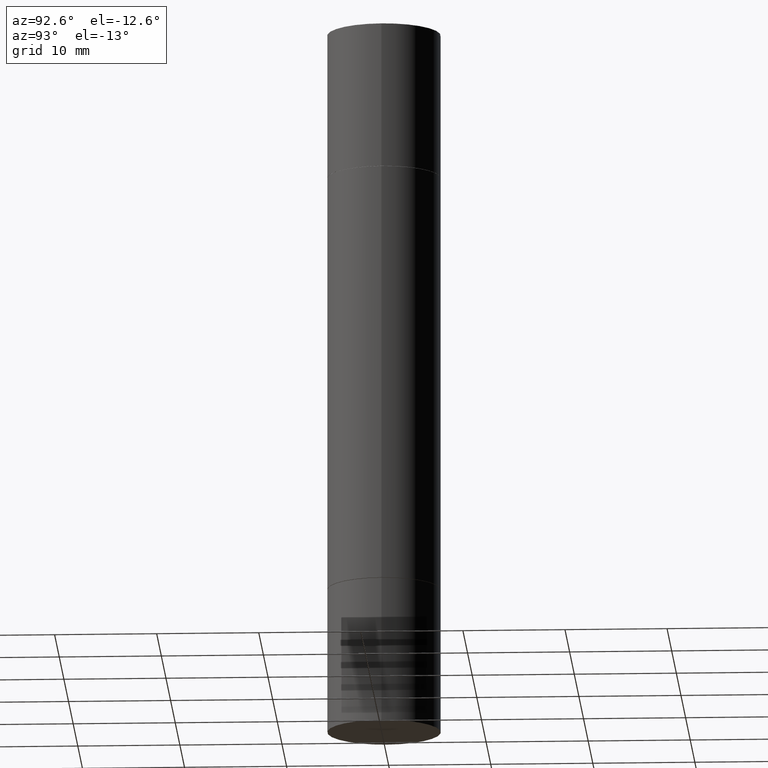
[diagram: clean part render]
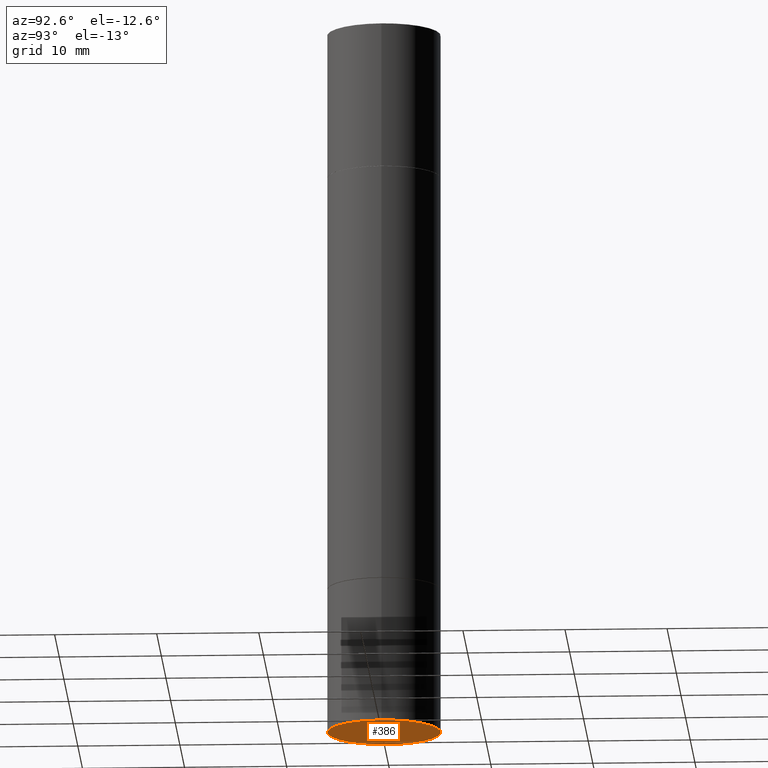
[diagram: same view with one face highlighted and labeled with its STEP entity id]
A machine part, auxiliary view. The second image highlights one B-rep face of the part: STEP entity #386.
In plain terms, the highlighted planar face has unit normal (0, -0, -1).
Its self-contained STEP definition (entity closure, byte-faithful):
#9 = FACE_OUTER_BOUND ( 'NONE', #105, .T. ) ;
#60 = ORIENTED_EDGE ( 'NONE', *, *, #490, .F. ) ;
#62 = DIRECTION ( 'NONE',  ( -1.000000000000000000, 6.982962677686265922E-15, -4.876176775795935793E-29 ) ) ;
#70 = CIRCLE ( 'NONE', #352, 0.2187500000000000000 ) ;
#105 = EDGE_LOOP ( 'NONE', ( #60, #224 ) ) ;
#129 = AXIS2_PLACEMENT_3D ( 'NONE', #374, #158, #584 ) ;
#158 = DIRECTION ( 'NONE',  ( -2.445468806185136597E-29, 3.491481338843145583E-15, 1.000000000000000000 ) ) ;
#178 = CARTESIAN_POINT ( 'NONE',  ( 1.527523085743937699E-15, 0.2187499999999903966, -2.750000000000000444 ) ) ;
#183 = DIRECTION ( 'NONE',  ( -2.445468806185136597E-29, 3.491481338843145583E-15, 1.000000000000000000 ) ) ;
#224 = ORIENTED_EDGE ( 'NONE', *, *, #633, .F. ) ;
#226 = PLANE ( 'NONE',  #609 ) ;
#257 = CARTESIAN_POINT ( 'NONE',  ( -0.2187500000000000000, -7.066155191128507043E-15, -2.750000000000000000 ) ) ;
#294 = DIRECTION ( 'NONE',  ( 1.000000000000000000, -6.982962677686262766E-15, 0.000000000000000000 ) ) ;
#346 = CARTESIAN_POINT ( 'NONE',  ( 6.725039217009124520E-29, -9.601573681818649859E-15, -2.750000000000000000 ) ) ;
#352 = AXIS2_PLACEMENT_3D ( 'NONE', #346, #183, #294 ) ;
#370 = CIRCLE ( 'NONE', #129, 0.2187500000000000000 ) ;
#374 = CARTESIAN_POINT ( 'NONE',  ( 6.725039217009124520E-29, -9.601573681818649859E-15, -2.750000000000000000 ) ) ;
#386 = ADVANCED_FACE ( 'NONE', ( #9 ), #226, .T. ) ;
#429 = VERTEX_POINT ( 'NONE', #257 ) ;
#439 = DIRECTION ( 'NONE',  ( 2.438088387897960049E-29, -3.491481338843145188E-15, -1.000000000000000000 ) ) ;
#447 = CARTESIAN_POINT ( 'NONE',  ( 0.2187500000000000000, -1.112909676756251991E-14, -2.750000000000000000 ) ) ;
#490 = EDGE_CURVE ( 'NONE', #591, #429, #370, .T. ) ;
#584 = DIRECTION ( 'NONE',  ( 1.000000000000000000, -6.982962677686262766E-15, 0.000000000000000000 ) ) ;
#591 = VERTEX_POINT ( 'NONE', #447 ) ;
#609 = AXIS2_PLACEMENT_3D ( 'NONE', #178, #439, #62 ) ;
#633 = EDGE_CURVE ( 'NONE', #429, #591, #70, .T. ) ;